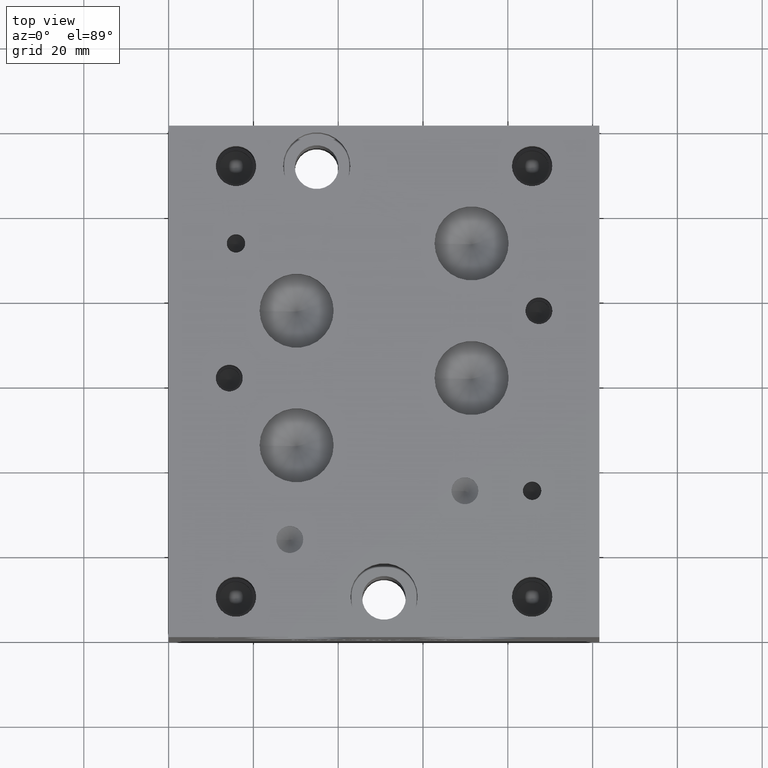
[diagram: clean part render]
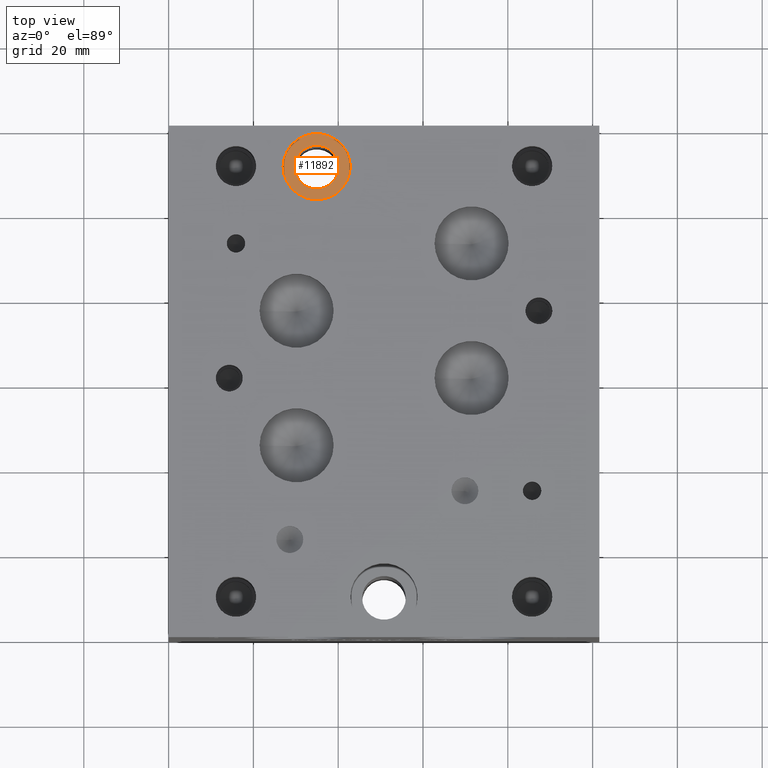
[diagram: same view with one face highlighted and labeled with its STEP entity id]
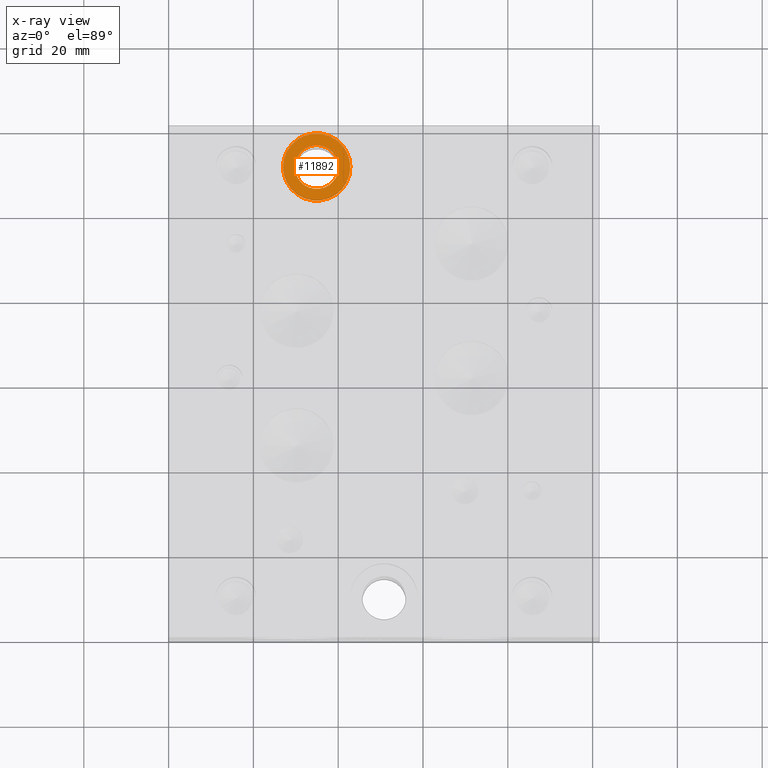
[diagram: x-ray of the same camera — body ghosted, the highlighted face saturated]
A machine part, top view. The second image highlights one B-rep face of the part: STEP entity #11892.
The next image is the same camera in x-ray: the body ghosted, the highlighted face saturated — about 0% of this face is hidden behind the body in this view.
In plain terms, the highlighted planar face has unit normal (0, 0, 1).
Its self-contained STEP definition (entity closure, byte-faithful):
#311=CIRCLE('',#12550,7.9375);
#312=CIRCLE('',#12551,7.9375);
#313=CIRCLE('',#12552,5.1562);
#458=FACE_BOUND('',#2139,.T.);
#1469=FACE_OUTER_BOUND('',#2138,.T.);
#2138=EDGE_LOOP('',(#10279,#10280));
#2139=EDGE_LOOP('',(#10281));
#5457=VERTEX_POINT('',#20366);
#5458=VERTEX_POINT('',#20367);
#5459=VERTEX_POINT('',#20370);
#7093=EDGE_CURVE('',#5457,#5458,#311,.T.);
#7094=EDGE_CURVE('',#5458,#5457,#312,.T.);
#7095=EDGE_CURVE('',#5459,#5459,#313,.T.);
#10279=ORIENTED_EDGE('',*,*,#7093,.T.);
#10280=ORIENTED_EDGE('',*,*,#7094,.T.);
#10281=ORIENTED_EDGE('',*,*,#7095,.F.);
#10879=PLANE('',#12549);
#11892=ADVANCED_FACE('',(#1469,#458),#10879,.T.);
#12549=AXIS2_PLACEMENT_3D('',#20365,#14938,#14939);
#12550=AXIS2_PLACEMENT_3D('',#20368,#14940,#14941);
#12551=AXIS2_PLACEMENT_3D('',#20369,#14942,#14943);
#12552=AXIS2_PLACEMENT_3D('',#20371,#14944,#14945);
#14938=DIRECTION('center_axis',(0.,0.,1.));
#14939=DIRECTION('ref_axis',(1.,0.,0.));
#14940=DIRECTION('center_axis',(0.,0.,1.));
#14941=DIRECTION('ref_axis',(1.,0.,0.));
#14942=DIRECTION('center_axis',(0.,0.,1.));
#14943=DIRECTION('ref_axis',(1.,0.,0.));
#14944=DIRECTION('center_axis',(0.,0.,1.));
#14945=DIRECTION('ref_axis',(1.,0.,0.));
#20365=CARTESIAN_POINT('Origin',(34.925,111.125,55.5752));
#20366=CARTESIAN_POINT('',(42.8625,111.125,55.5752));
#20367=CARTESIAN_POINT('',(26.9875,111.125,55.5752));
#20368=CARTESIAN_POINT('Origin',(34.925,111.125,55.5752));
#20369=CARTESIAN_POINT('Origin',(34.925,111.125,55.5752));
#20370=CARTESIAN_POINT('',(29.7688,111.125,55.5752));
#20371=CARTESIAN_POINT('Origin',(34.925,111.125,55.5752));